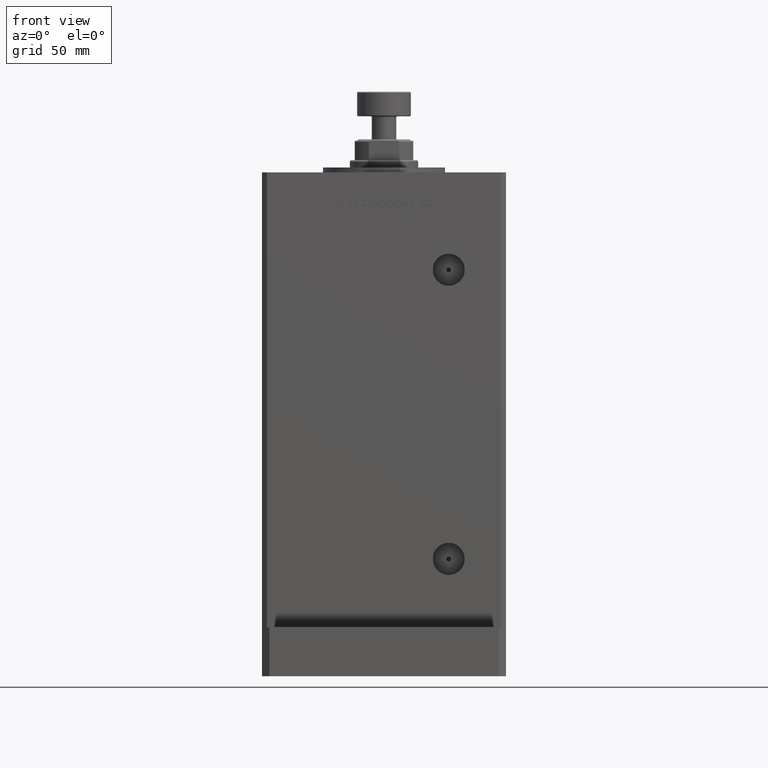
[diagram: clean part render]
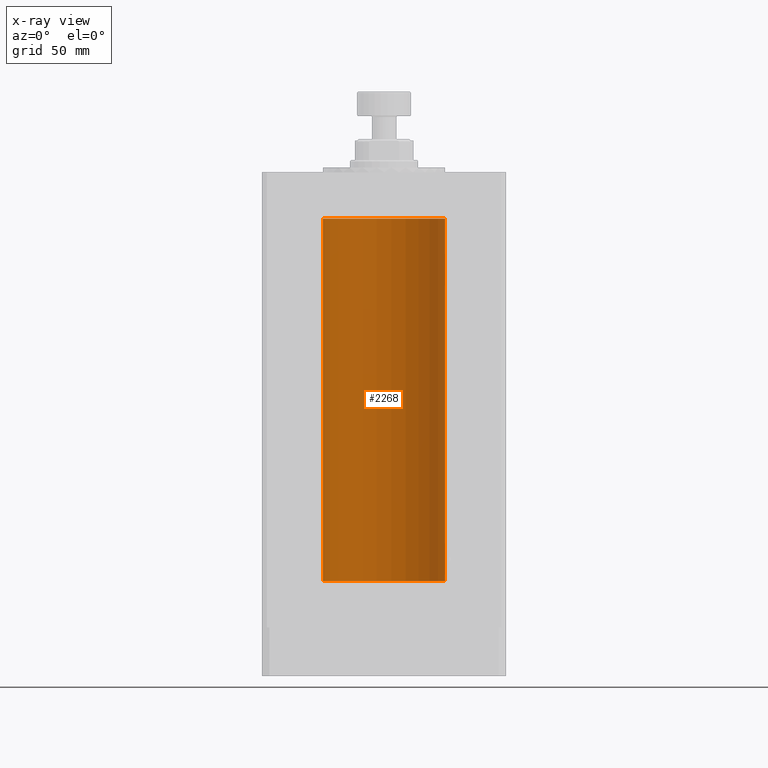
[diagram: x-ray — body ghosted, one internal face saturated and labeled with its STEP entity id]
A machine part, front view, then the same camera in x-ray: the body is ghosted and one INTERNAL B-rep face — a face not visible from any outside direction — is saturated and labeled: STEP entity #2268.
In plain terms, the highlighted cylindrical surface (partial cylindrical patch) has radius 25 mm, axis along (-0, -0, -1).
Its self-contained STEP definition (entity closure, byte-faithful):
#3 = EDGE_CURVE ( 'NONE', #6708, #10086, #18131, .T. ) ;
#2261 = CIRCLE ( 'NONE', #3165, 25.00000000000000000 ) ;
#2268 = ADVANCED_FACE ( 'NONE', ( #34808 ), #26822, .F. ) ;
#2561 = VERTEX_POINT ( 'NONE', #46204 ) ;
#3165 = AXIS2_PLACEMENT_3D ( 'NONE', #9308, #37266, #21086 ) ;
#4190 = EDGE_CURVE ( 'NONE', #2561, #43885, #4199, .T. ) ;
#4199 = LINE ( 'NONE', #46415, #16909 ) ;
#4641 = CARTESIAN_POINT ( 'NONE',  ( 0.000000000000000000, 0.000000000000000000, 0.000000000000000000 ) ) ;
#4929 = CARTESIAN_POINT ( 'NONE',  ( 0.000000000000000000, 0.000000000000000000, 148.5000000000000000 ) ) ;
#6708 = VERTEX_POINT ( 'NONE', #9781 ) ;
#9308 = CARTESIAN_POINT ( 'NONE',  ( 0.000000000000000000, 0.000000000000000000, 148.5000000000000000 ) ) ;
#9318 = DIRECTION ( 'NONE',  ( 1.000000000000000000, 0.000000000000000000, 0.000000000000000000 ) ) ;
#9781 = CARTESIAN_POINT ( 'NONE',  ( -25.00000000000000000, 0.000000000000000000, 148.5000000000000000 ) ) ;
#10086 = VERTEX_POINT ( 'NONE', #36831 ) ;
#11298 = VECTOR ( 'NONE', #35349, 1000.000000000000000 ) ;
#14118 = ORIENTED_EDGE ( 'NONE', *, *, #3, .T. ) ;
#14232 = CARTESIAN_POINT ( 'NONE',  ( 25.00000000000000000, 3.061616997868383043E-15, 0.000000000000000000 ) ) ;
#14730 = EDGE_CURVE ( 'NONE', #2561, #6708, #2261, .T. ) ;
#15678 = AXIS2_PLACEMENT_3D ( 'NONE', #4929, #21928, #39450 ) ;
#16834 = DIRECTION ( 'NONE',  ( -0.000000000000000000, -0.000000000000000000, -1.000000000000000000 ) ) ;
#16909 = VECTOR ( 'NONE', #16834, 1000.000000000000000 ) ;
#18131 = LINE ( 'NONE', #26850, #11298 ) ;
#21086 = DIRECTION ( 'NONE',  ( 1.000000000000000000, 0.000000000000000000, 0.000000000000000000 ) ) ;
#21928 = DIRECTION ( 'NONE',  ( -0.000000000000000000, -0.000000000000000000, -1.000000000000000000 ) ) ;
#23492 = EDGE_CURVE ( 'NONE', #43885, #10086, #26011, .T. ) ;
#26011 = CIRCLE ( 'NONE', #47044, 25.00000000000000000 ) ;
#26822 = CYLINDRICAL_SURFACE ( 'NONE', #15678, 25.00000000000000000 ) ;
#26850 = CARTESIAN_POINT ( 'NONE',  ( -25.00000000000000000, 0.000000000000000000, 148.5000000000000000 ) ) ;
#27837 = EDGE_LOOP ( 'NONE', ( #46472, #39330, #14118, #34211 ) ) ;
#34211 = ORIENTED_EDGE ( 'NONE', *, *, #23492, .F. ) ;
#34808 = FACE_OUTER_BOUND ( 'NONE', #27837, .T. ) ;
#35349 = DIRECTION ( 'NONE',  ( -0.000000000000000000, -0.000000000000000000, -1.000000000000000000 ) ) ;
#36831 = CARTESIAN_POINT ( 'NONE',  ( -25.00000000000000000, 0.000000000000000000, 0.000000000000000000 ) ) ;
#37266 = DIRECTION ( 'NONE',  ( -0.000000000000000000, 0.000000000000000000, 1.000000000000000000 ) ) ;
#39330 = ORIENTED_EDGE ( 'NONE', *, *, #14730, .T. ) ;
#39450 = DIRECTION ( 'NONE',  ( -1.000000000000000000, 0.000000000000000000, 0.000000000000000000 ) ) ;
#43885 = VERTEX_POINT ( 'NONE', #14232 ) ;
#46204 = CARTESIAN_POINT ( 'NONE',  ( 25.00000000000000000, 3.061616997868383043E-15, 148.5000000000000000 ) ) ;
#46415 = CARTESIAN_POINT ( 'NONE',  ( 25.00000000000000000, 3.061616997868383043E-15, 148.5000000000000000 ) ) ;
#46472 = ORIENTED_EDGE ( 'NONE', *, *, #4190, .F. ) ;
#47044 = AXIS2_PLACEMENT_3D ( 'NONE', #4641, #50159, #9318 ) ;
#50159 = DIRECTION ( 'NONE',  ( -0.000000000000000000, 0.000000000000000000, 1.000000000000000000 ) ) ;